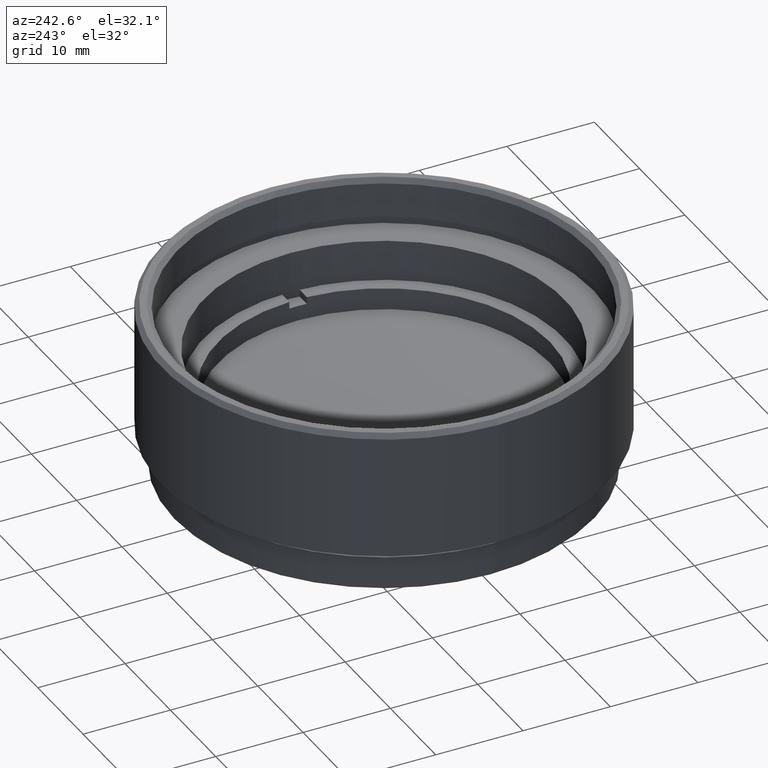
[diagram: clean part render]
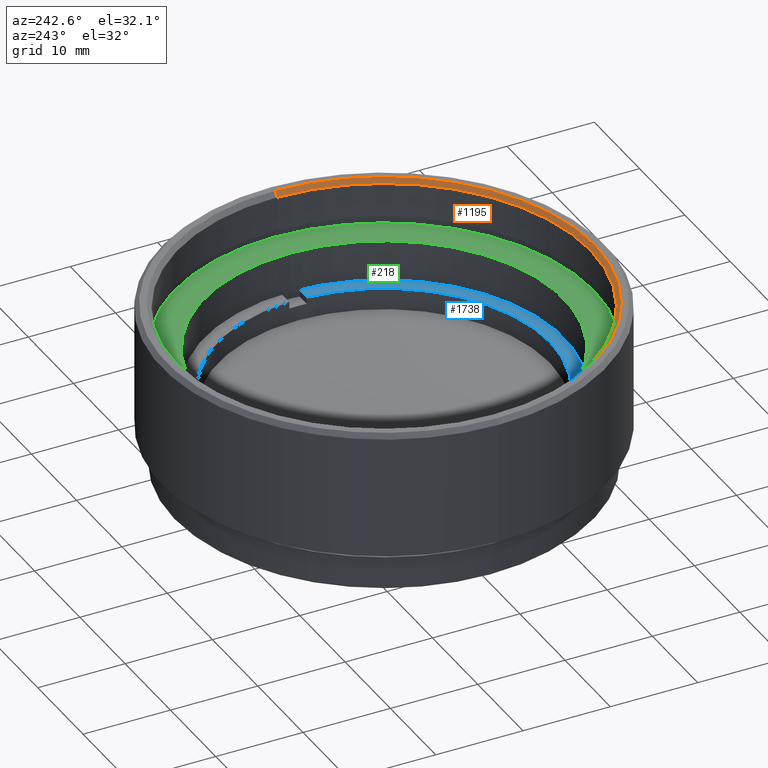
[diagram: same view with three faces highlighted in distinct colors, each labeled with its STEP entity id]
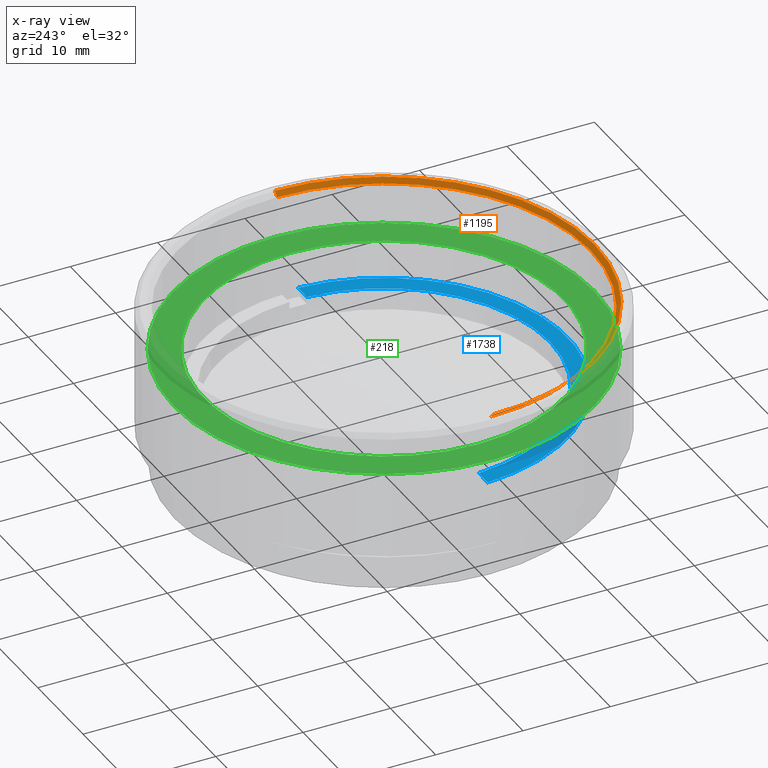
[diagram: x-ray of the same camera — body ghosted, the three highlighted faces saturated]
A machine part, auxiliary view with three faces highlighted in distinct colors.
The next image is the same camera in x-ray (body ghosted, the three faces saturated) — at least one of them is partly hidden behind the body in this view.
Their STEP definitions:

[orange] entity #1195 — the highlighted conical surface has half-angle 45 deg.
#1 = DIRECTION ( 'NONE',  ( 0.000000000000000000, 0.000000000000000000, 1.000000000000000000 ) ) ;
#11 = CONICAL_SURFACE ( 'NONE', #93, 23.62500000000000000, 0.7853981633974621568 ) ;
#38 = DIRECTION ( 'NONE',  ( 0.7071067811865574537, 0.000000000000000000, 0.7071067811865376918 ) ) ;
#93 = AXIS2_PLACEMENT_3D ( 'NONE', #323, #1, #461 ) ;
#150 = CARTESIAN_POINT ( 'NONE',  ( -23.62500000000000000, 2.893228062985622214E-15, 18.99999999999999289 ) ) ;
#173 = CARTESIAN_POINT ( 'NONE',  ( 23.62500000000000000, 0.000000000000000000, 18.99999999999999289 ) ) ;
#195 = DIRECTION ( 'NONE',  ( -0.7071067811865574537, 8.659560562355054885E-17, 0.7071067811865376918 ) ) ;
#282 = CIRCLE ( 'NONE', #634, 24.12500000000002132 ) ;
#323 = CARTESIAN_POINT ( 'NONE',  ( 0.000000000000000000, 0.000000000000000000, 18.99999999999999289 ) ) ;
#358 = CARTESIAN_POINT ( 'NONE',  ( -23.62500000000000000, 2.893228062985622214E-15, 18.99999999999999289 ) ) ;
#381 = CIRCLE ( 'NONE', #888, 23.62500000000000000 ) ;
#382 = ORIENTED_EDGE ( 'NONE', *, *, #1823, .T. ) ;
#436 = CARTESIAN_POINT ( 'NONE',  ( -24.12500000000002132, 2.954460402942992155E-15, 19.50000000000000000 ) ) ;
#461 = DIRECTION ( 'NONE',  ( 1.000000000000000000, 0.000000000000000000, 0.000000000000000000 ) ) ;
#471 = VERTEX_POINT ( 'NONE', #436 ) ;
#482 = CARTESIAN_POINT ( 'NONE',  ( 23.62500000000000000, 0.000000000000000000, 18.99999999999999289 ) ) ;
#634 = AXIS2_PLACEMENT_3D ( 'NONE', #1192, #1354, #880 ) ;
#808 = EDGE_CURVE ( 'NONE', #836, #1518, #926, .T. ) ;
#836 = VERTEX_POINT ( 'NONE', #482 ) ;
#880 = DIRECTION ( 'NONE',  ( 1.000000000000000000, 0.000000000000000000, 0.000000000000000000 ) ) ;
#888 = AXIS2_PLACEMENT_3D ( 'NONE', #1621, #1649, #1341 ) ;
#912 = ORIENTED_EDGE ( 'NONE', *, *, #1610, .F. ) ;
#926 = LINE ( 'NONE', #173, #1245 ) ;
#1184 = VECTOR ( 'NONE', #195, 999.9999999999998863 ) ;
#1192 = CARTESIAN_POINT ( 'NONE',  ( 0.000000000000000000, 0.000000000000000000, 19.50000000000000000 ) ) ;
#1195 = ADVANCED_FACE ( 'NONE', ( #1412 ), #11, .F. ) ;
#1235 = ORIENTED_EDGE ( 'NONE', *, *, #808, .F. ) ;
#1245 = VECTOR ( 'NONE', #38, 999.9999999999998863 ) ;
#1270 = EDGE_LOOP ( 'NONE', ( #1342, #382, #912, #1235 ) ) ;
#1341 = DIRECTION ( 'NONE',  ( 1.000000000000000000, 0.000000000000000000, 0.000000000000000000 ) ) ;
#1342 = ORIENTED_EDGE ( 'NONE', *, *, #1680, .F. ) ;
#1354 = DIRECTION ( 'NONE',  ( -0.000000000000000000, -0.000000000000000000, -1.000000000000000000 ) ) ;
#1412 = FACE_OUTER_BOUND ( 'NONE', #1270, .T. ) ;
#1453 = CARTESIAN_POINT ( 'NONE',  ( 24.12500000000002132, 0.000000000000000000, 19.50000000000000000 ) ) ;
#1518 = VERTEX_POINT ( 'NONE', #1453 ) ;
#1533 = LINE ( 'NONE', #358, #1184 ) ;
#1610 = EDGE_CURVE ( 'NONE', #1518, #471, #282, .T. ) ;
#1621 = CARTESIAN_POINT ( 'NONE',  ( 0.000000000000000000, 0.000000000000000000, 18.99999999999999289 ) ) ;
#1649 = DIRECTION ( 'NONE',  ( 0.000000000000000000, 0.000000000000000000, 1.000000000000000000 ) ) ;
#1680 = EDGE_CURVE ( 'NONE', #1684, #836, #381, .T. ) ;
#1684 = VERTEX_POINT ( 'NONE', #150 ) ;
#1823 = EDGE_CURVE ( 'NONE', #1684, #471, #1533, .T. ) ;

[blue] entity #1738 — the highlighted planar face has unit normal (0, 0, 1).
#56 = DIRECTION ( 'NONE',  ( 0.000000000000000000, 0.000000000000000000, 1.000000000000000000 ) ) ;
#96 = ORIENTED_EDGE ( 'NONE', *, *, #364, .T. ) ;
#100 = CARTESIAN_POINT ( 'NONE',  ( 0.000000000000000000, 0.000000000000000000, 2.500000000000000000 ) ) ;
#130 = AXIS2_PLACEMENT_3D ( 'NONE', #1226, #480, #1211 ) ;
#168 = ORIENTED_EDGE ( 'NONE', *, *, #209, .F. ) ;
#179 = CARTESIAN_POINT ( 'NONE',  ( 0.000000000000000000, 0.000000000000000000, 2.500000000000000000 ) ) ;
#209 = EDGE_CURVE ( 'NONE', #1650, #1821, #359, .T. ) ;
#235 = EDGE_CURVE ( 'NONE', #1761, #1650, #1547, .T. ) ;
#307 = DIRECTION ( 'NONE',  ( 1.000000000000000000, 0.000000000000000000, 0.000000000000000000 ) ) ;
#316 = CARTESIAN_POINT ( 'NONE',  ( 20.97617696340303084, -1.000000000000000000, 2.500000000000000000 ) ) ;
#359 = LINE ( 'NONE', #1520, #882 ) ;
#364 = EDGE_CURVE ( 'NONE', #1915, #1821, #1862, .T. ) ;
#425 = DIRECTION ( 'NONE',  ( 0.000000000000000000, 0.000000000000000000, 1.000000000000000000 ) ) ;
#474 = CARTESIAN_POINT ( 'NONE',  ( -30.62185530834360492, -1.000000000000000000, 2.500000000000000000 ) ) ;
#480 = DIRECTION ( 'NONE',  ( 0.000000000000000000, 0.000000000000000000, 1.000000000000000000 ) ) ;
#521 = ORIENTED_EDGE ( 'NONE', *, *, #1253, .F. ) ;
#882 = VECTOR ( 'NONE', #1819, 1000.000000000000000 ) ;
#982 = AXIS2_PLACEMENT_3D ( 'NONE', #179, #56, #1833 ) ;
#1023 = CARTESIAN_POINT ( 'NONE',  ( 18.97366596101027625, -1.000000000000000000, 2.500000000000000000 ) ) ;
#1044 = FACE_OUTER_BOUND ( 'NONE', #1260, .T. ) ;
#1099 = ORIENTED_EDGE ( 'NONE', *, *, #235, .F. ) ;
#1208 = LINE ( 'NONE', #474, #1246 ) ;
#1211 = DIRECTION ( 'NONE',  ( 1.000000000000000000, 0.000000000000000000, -0.000000000000000000 ) ) ;
#1226 = CARTESIAN_POINT ( 'NONE',  ( 0.000000000000000000, 0.000000000000000000, 2.500000000000000000 ) ) ;
#1246 = VECTOR ( 'NONE', #307, 1000.000000000000000 ) ;
#1253 = EDGE_CURVE ( 'NONE', #1915, #1761, #1208, .T. ) ;
#1260 = EDGE_LOOP ( 'NONE', ( #521, #96, #168, #1099 ) ) ;
#1306 = DIRECTION ( 'NONE',  ( 1.000000000000000000, 0.000000000000000000, 0.000000000000000000 ) ) ;
#1502 = AXIS2_PLACEMENT_3D ( 'NONE', #100, #425, #1306 ) ;
#1520 = CARTESIAN_POINT ( 'NONE',  ( -30.62185530834360492, -1.000000000000000000, 2.500000000000000000 ) ) ;
#1547 = CIRCLE ( 'NONE', #982, 19.00000000000000000 ) ;
#1639 = PLANE ( 'NONE',  #130 ) ;
#1650 = VERTEX_POINT ( 'NONE', #1023 ) ;
#1688 = CARTESIAN_POINT ( 'NONE',  ( -18.97366596101027625, -1.000000000000000000, 2.500000000000000000 ) ) ;
#1738 = ADVANCED_FACE ( 'NONE', ( #1044 ), #1639, .T. ) ;
#1761 = VERTEX_POINT ( 'NONE', #1688 ) ;
#1819 = DIRECTION ( 'NONE',  ( 1.000000000000000000, 0.000000000000000000, 0.000000000000000000 ) ) ;
#1821 = VERTEX_POINT ( 'NONE', #316 ) ;
#1833 = DIRECTION ( 'NONE',  ( 1.000000000000000000, 0.000000000000000000, 0.000000000000000000 ) ) ;
#1847 = CARTESIAN_POINT ( 'NONE',  ( -20.97617696340303084, -1.000000000000000000, 2.500000000000000000 ) ) ;
#1862 = CIRCLE ( 'NONE', #1502, 21.00000000000000000 ) ;
#1915 = VERTEX_POINT ( 'NONE', #1847 ) ;

[green] entity #218 — the highlighted planar face has unit normal (0, 0, 1).
#35 = FACE_BOUND ( 'NONE', #1512, .T. ) ;
#172 = VERTEX_POINT ( 'NONE', #504 ) ;
#198 = DIRECTION ( 'NONE',  ( 1.000000000000000000, 0.000000000000000000, -0.000000000000000000 ) ) ;
#218 = ADVANCED_FACE ( 'NONE', ( #35, #1233 ), #1068, .T. ) ;
#243 = AXIS2_PLACEMENT_3D ( 'NONE', #302, #1656, #935 ) ;
#302 = CARTESIAN_POINT ( 'NONE',  ( 0.000000000000000000, 0.000000000000000000, 14.00000000000000000 ) ) ;
#355 = AXIS2_PLACEMENT_3D ( 'NONE', #1367, #1666, #198 ) ;
#370 = DIRECTION ( 'NONE',  ( -0.000000000000000000, -0.000000000000000000, -1.000000000000000000 ) ) ;
#380 = CARTESIAN_POINT ( 'NONE',  ( 0.000000000000000000, 0.000000000000000000, 14.00000000000000000 ) ) ;
#449 = DIRECTION ( 'NONE',  ( 0.000000000000000000, 0.000000000000000000, 1.000000000000000000 ) ) ;
#492 = ORIENTED_EDGE ( 'NONE', *, *, #968, .T. ) ;
#504 = CARTESIAN_POINT ( 'NONE',  ( 20.62500000000000000, 0.000000000000000000, 14.00000000000000000 ) ) ;
#522 = DIRECTION ( 'NONE',  ( 1.000000000000000000, 0.000000000000000000, 0.000000000000000000 ) ) ;
#617 = ORIENTED_EDGE ( 'NONE', *, *, #1120, .T. ) ;
#659 = CARTESIAN_POINT ( 'NONE',  ( 24.05000000000000071, 2.945275551949384573E-15, 14.00000000000000000 ) ) ;
#748 = EDGE_CURVE ( 'NONE', #934, #1865, #1214, .T. ) ;
#934 = VERTEX_POINT ( 'NONE', #1747 ) ;
#935 = DIRECTION ( 'NONE',  ( 1.000000000000000000, 0.000000000000000000, 0.000000000000000000 ) ) ;
#968 = EDGE_CURVE ( 'NONE', #1865, #934, #1092, .T. ) ;
#999 = ORIENTED_EDGE ( 'NONE', *, *, #1715, .T. ) ;
#1002 = AXIS2_PLACEMENT_3D ( 'NONE', #1316, #449, #1218 ) ;
#1017 = ORIENTED_EDGE ( 'NONE', *, *, #748, .T. ) ;
#1068 = PLANE ( 'NONE',  #355 ) ;
#1092 = CIRCLE ( 'NONE', #243, 24.05000000000000071 ) ;
#1096 = CARTESIAN_POINT ( 'NONE',  ( -20.62500000000000000, 2.525834023241415981E-15, 14.00000000000000000 ) ) ;
#1120 = EDGE_CURVE ( 'NONE', #172, #1798, #1276, .T. ) ;
#1153 = CIRCLE ( 'NONE', #1382, 20.62500000000000000 ) ;
#1214 = CIRCLE ( 'NONE', #1002, 24.05000000000000071 ) ;
#1218 = DIRECTION ( 'NONE',  ( 1.000000000000000000, 0.000000000000000000, 0.000000000000000000 ) ) ;
#1233 = FACE_OUTER_BOUND ( 'NONE', #1487, .T. ) ;
#1276 = CIRCLE ( 'NONE', #1757, 20.62500000000000000 ) ;
#1309 = DIRECTION ( 'NONE',  ( -0.000000000000000000, -0.000000000000000000, -1.000000000000000000 ) ) ;
#1316 = CARTESIAN_POINT ( 'NONE',  ( 0.000000000000000000, 0.000000000000000000, 14.00000000000000000 ) ) ;
#1367 = CARTESIAN_POINT ( 'NONE',  ( 0.000000000000000000, 0.000000000000000000, 14.00000000000000000 ) ) ;
#1382 = AXIS2_PLACEMENT_3D ( 'NONE', #1776, #1309, #1904 ) ;
#1487 = EDGE_LOOP ( 'NONE', ( #1017, #492 ) ) ;
#1512 = EDGE_LOOP ( 'NONE', ( #617, #999 ) ) ;
#1656 = DIRECTION ( 'NONE',  ( 0.000000000000000000, 0.000000000000000000, 1.000000000000000000 ) ) ;
#1666 = DIRECTION ( 'NONE',  ( 0.000000000000000000, 0.000000000000000000, 1.000000000000000000 ) ) ;
#1715 = EDGE_CURVE ( 'NONE', #1798, #172, #1153, .T. ) ;
#1747 = CARTESIAN_POINT ( 'NONE',  ( -24.05000000000000071, 0.000000000000000000, 14.00000000000000000 ) ) ;
#1757 = AXIS2_PLACEMENT_3D ( 'NONE', #380, #370, #522 ) ;
#1776 = CARTESIAN_POINT ( 'NONE',  ( 0.000000000000000000, 0.000000000000000000, 14.00000000000000000 ) ) ;
#1798 = VERTEX_POINT ( 'NONE', #1096 ) ;
#1865 = VERTEX_POINT ( 'NONE', #659 ) ;
#1904 = DIRECTION ( 'NONE',  ( 1.000000000000000000, 0.000000000000000000, 0.000000000000000000 ) ) ;